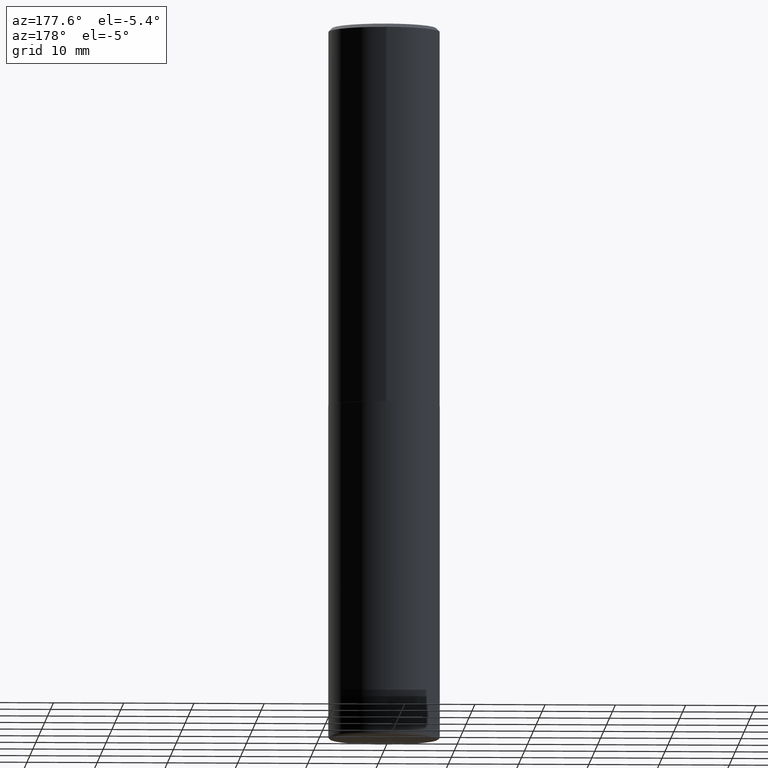
[diagram: clean part render]
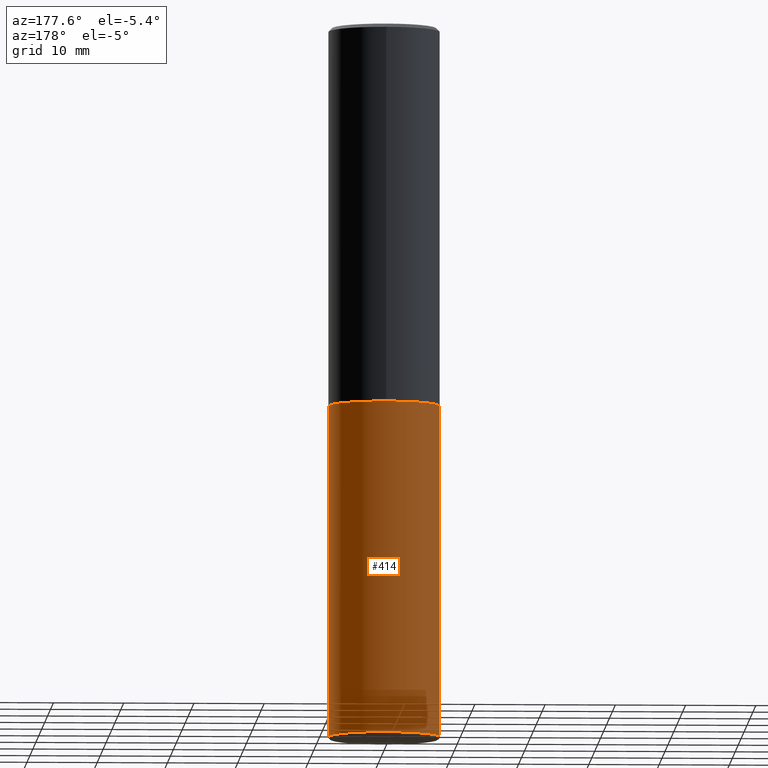
[diagram: same view with one face highlighted and labeled with its STEP entity id]
A machine part, auxiliary view. The second image highlights one B-rep face of the part: STEP entity #414.
In plain terms, the highlighted cylindrical surface (partial cylindrical patch) has radius 7.9375 mm, axis along (-0, 0, 1).
Its self-contained STEP definition (entity closure, byte-faithful):
#7 = VERTEX_POINT ( 'NONE', #266 ) ;
#21 = AXIS2_PLACEMENT_3D ( 'NONE', #395, #170, #357 ) ;
#56 = EDGE_CURVE ( 'NONE', #7, #84, #299, .T. ) ;
#84 = VERTEX_POINT ( 'NONE', #290 ) ;
#96 = VECTOR ( 'NONE', #291, 39.37007874015748143 ) ;
#109 = LINE ( 'NONE', #265, #345 ) ;
#170 = DIRECTION ( 'NONE',  ( -2.445468806185136597E-29, 3.491481338843145583E-15, 1.000000000000000000 ) ) ;
#187 = VERTEX_POINT ( 'NONE', #350 ) ;
#204 = CARTESIAN_POINT ( 'NONE',  ( 0.000000000000000000, 0.000000000000000000, 0.000000000000000000 ) ) ;
#209 = EDGE_CURVE ( 'NONE', #187, #84, #277, .T. ) ;
#228 = CARTESIAN_POINT ( 'NONE',  ( 5.196621213143414147E-29, -7.419397845041682046E-15, -2.124999999999999556 ) ) ;
#231 = ORIENTED_EDGE ( 'NONE', *, *, #257, .F. ) ;
#237 = FACE_OUTER_BOUND ( 'NONE', #402, .T. ) ;
#246 = EDGE_CURVE ( 'NONE', #383, #7, #304, .T. ) ;
#257 = EDGE_CURVE ( 'NONE', #383, #187, #109, .T. ) ;
#265 = CARTESIAN_POINT ( 'NONE',  ( 0.3125000000000000000, -2.182175836776958347E-15, 1.523805242436230075E-29 ) ) ;
#266 = CARTESIAN_POINT ( 'NONE',  ( -0.3125000000000000555, -1.169310708603962099E-14, -3.984999999999999876 ) ) ;
#277 = CIRCLE ( 'NONE', #411, 0.3125000000000000000 ) ;
#290 = CARTESIAN_POINT ( 'NONE',  ( -0.3125000000000000000, -8.446029440915494976E-15, -2.124999999999999556 ) ) ;
#291 = DIRECTION ( 'NONE',  ( -2.445468806185136877E-29, 3.491481338843145188E-15, 1.000000000000000000 ) ) ;
#299 = LINE ( 'NONE', #363, #96 ) ;
#301 = DIRECTION ( 'NONE',  ( 1.000000000000000000, -6.982962677686266711E-15, 4.876176775795936353E-29 ) ) ;
#304 = CIRCLE ( 'NONE', #21, 0.3125000000000000000 ) ;
#322 = ORIENTED_EDGE ( 'NONE', *, *, #246, .T. ) ;
#324 = CARTESIAN_POINT ( 'NONE',  ( 0.3125000000000000555, -1.609572897206689399E-14, -3.984999999999999876 ) ) ;
#330 = DIRECTION ( 'NONE',  ( -2.445468806185136597E-29, 3.491481338843145583E-15, 1.000000000000000000 ) ) ;
#345 = VECTOR ( 'NONE', #397, 39.37007874015748143 ) ;
#350 = CARTESIAN_POINT ( 'NONE',  ( 0.3125000000000000000, -9.601573681818640393E-15, -2.124999999999999556 ) ) ;
#352 = DIRECTION ( 'NONE',  ( 1.000000000000000000, -6.982962677686265133E-15, 0.000000000000000000 ) ) ;
#357 = DIRECTION ( 'NONE',  ( 1.000000000000000000, -6.982962677686269077E-15, 0.000000000000000000 ) ) ;
#360 = CYLINDRICAL_SURFACE ( 'NONE', #362, 0.3125000000000000000 ) ;
#362 = AXIS2_PLACEMENT_3D ( 'NONE', #204, #330, #301 ) ;
#363 = CARTESIAN_POINT ( 'NONE',  ( -0.3125000000000000000, 2.220446049250313081E-15, -1.537167215704658232E-29 ) ) ;
#383 = VERTEX_POINT ( 'NONE', #324 ) ;
#389 = ORIENTED_EDGE ( 'NONE', *, *, #209, .F. ) ;
#395 = CARTESIAN_POINT ( 'NONE',  ( 9.745193192647769069E-29, -1.391355313528993407E-14, -3.984999999999999876 ) ) ;
#397 = DIRECTION ( 'NONE',  ( -2.445468806185136877E-29, 3.491481338843145188E-15, 1.000000000000000000 ) ) ;
#402 = EDGE_LOOP ( 'NONE', ( #322, #413, #389, #231 ) ) ;
#411 = AXIS2_PLACEMENT_3D ( 'NONE', #228, #418, #352 ) ;
#413 = ORIENTED_EDGE ( 'NONE', *, *, #56, .T. ) ;
#414 = ADVANCED_FACE ( 'NONE', ( #237 ), #360, .T. ) ;
#418 = DIRECTION ( 'NONE',  ( -2.445468806185136597E-29, 3.491481338843145583E-15, 1.000000000000000000 ) ) ;